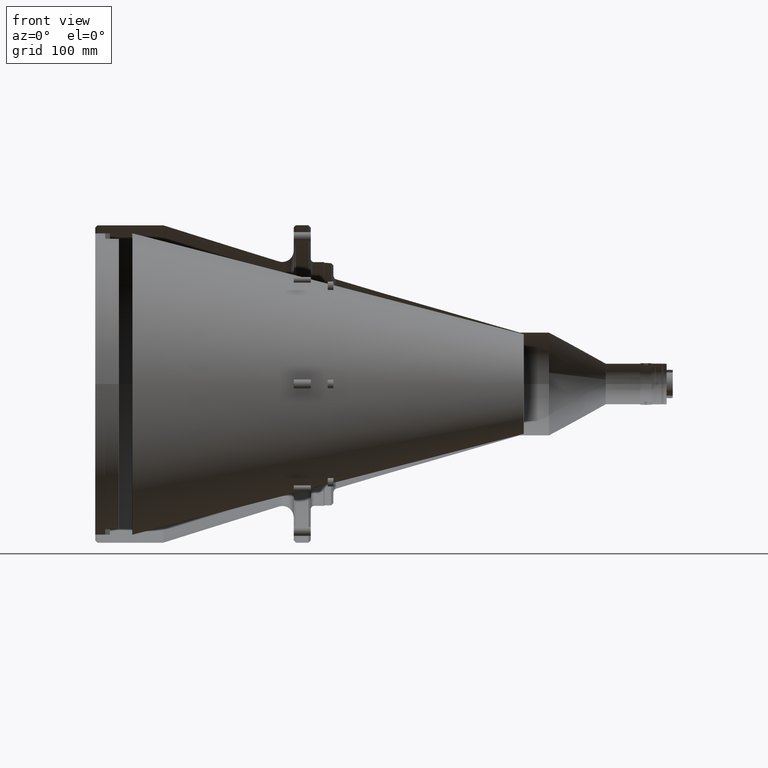
[diagram: clean part render]
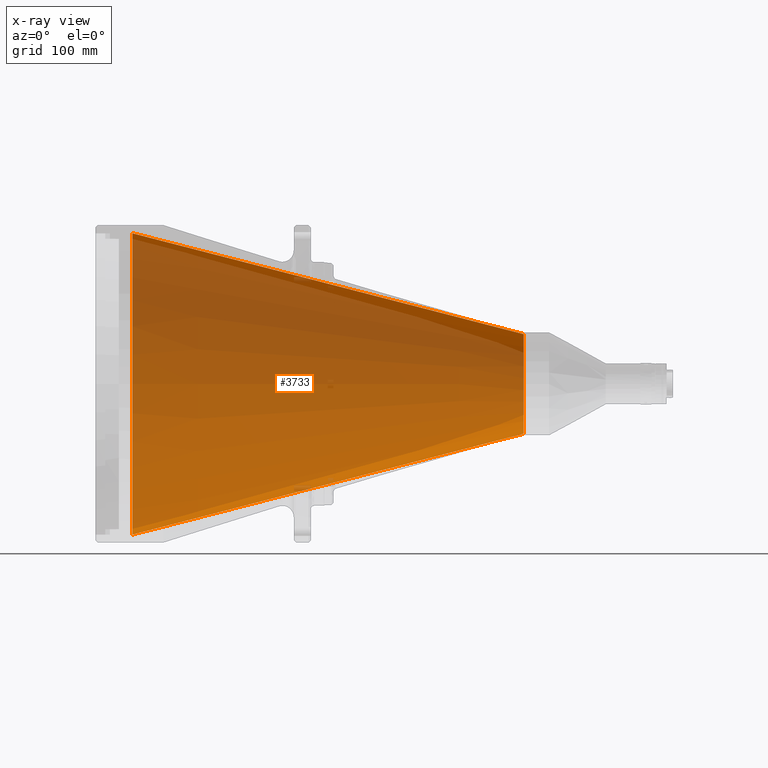
[diagram: x-ray — body ghosted, one internal face saturated and labeled with its STEP entity id]
A machine part, front view, then the same camera in x-ray: the body is ghosted and one INTERNAL B-rep face — a face not visible from any outside direction — is saturated and labeled: STEP entity #3733.
In plain terms, the highlighted conical surface has half-angle 14.455 deg.
Its self-contained STEP definition (entity closure, byte-faithful):
#1843 = FACE_OUTER_BOUND ( 'NONE', #12357, .T. ) ;
#2001 = EDGE_CURVE ( 'NONE', #49968, #39533, #4993, .T. ) ;
#2325 = DIRECTION ( 'NONE',  ( -0.9683443788479452197, -5.185861427084958103E-13, 0.2496180361143545412 ) ) ;
#3733 = ADVANCED_FACE ( 'NONE', ( #1843 ), #13232, .T. ) ;
#4488 = CARTESIAN_POINT ( 'NONE',  ( 32.64865611299999415, 6.232541669094235432E-10, -132.8999999995016310 ) ) ;
#4993 = CIRCLE ( 'NONE', #7463, 43.90496467575479755 ) ;
#5856 = CARTESIAN_POINT ( 'NONE',  ( 377.8874999999999886, 0.000000000000000000, 0.000000000000000000 ) ) ;
#6364 = DIRECTION ( 'NONE',  ( -1.000000000000000000, 0.000000000000000000, 0.000000000000000000 ) ) ;
#7067 = CARTESIAN_POINT ( 'NONE',  ( 377.8874999999999886, 5.308042916309188747E-10, -43.90496467575480466 ) ) ;
#7214 = EDGE_CURVE ( 'NONE', #9697, #37722, #31887, .T. ) ;
#7463 = AXIS2_PLACEMENT_3D ( 'NONE', #5856, #6364, #38021 ) ;
#9697 = VERTEX_POINT ( 'NONE', #41721 ) ;
#10059 = DIRECTION ( 'NONE',  ( 1.000000000000000000, 0.000000000000000000, 0.000000000000000000 ) ) ;
#10883 = LINE ( 'NONE', #18904, #37510 ) ;
#11141 = VECTOR ( 'NONE', #39270, 1000.000000000000000 ) ;
#12032 = EDGE_CURVE ( 'NONE', #39533, #9697, #12508, .T. ) ;
#12357 = EDGE_LOOP ( 'NONE', ( #29917, #18012, #43141, #50928 ) ) ;
#12508 = LINE ( 'NONE', #4488, #11141 ) ;
#13232 = CONICAL_SURFACE ( 'NONE', #38106, 132.8999999998509907, 0.2522857846158361173 ) ;
#14266 = CARTESIAN_POINT ( 'NONE',  ( 32.64865611299999415, 3.471356535555969975E-10, 3.493652861897810146E-10 ) ) ;
#14439 = AXIS2_PLACEMENT_3D ( 'NONE', #29777, #10059, #29267 ) ;
#18012 = ORIENTED_EDGE ( 'NONE', *, *, #12032, .T. ) ;
#18904 = CARTESIAN_POINT ( 'NONE',  ( 32.64865611299999415, 7.103341575773099321E-11, 132.9000000002003503 ) ) ;
#18924 = CARTESIAN_POINT ( 'NONE',  ( 377.8874999999999886, 0.000000000000000000, 43.90496467575479755 ) ) ;
#24342 = EDGE_CURVE ( 'NONE', #49968, #37722, #10883, .T. ) ;
#24979 = CARTESIAN_POINT ( 'NONE',  ( 32.64865611299999415, 7.103341575773099321E-11, 132.9000000002003503 ) ) ;
#29267 = DIRECTION ( 'NONE',  ( 0.000000000000000000, -2.077518719324119976E-12, 1.000000000000000000 ) ) ;
#29777 = CARTESIAN_POINT ( 'NONE',  ( 32.64865611299999415, 3.471356535555969975E-10, 3.493652861897810146E-10 ) ) ;
#29917 = ORIENTED_EDGE ( 'NONE', *, *, #2001, .T. ) ;
#31887 = CIRCLE ( 'NONE', #14439, 132.8999999998509907 ) ;
#37510 = VECTOR ( 'NONE', #2325, 1000.000000000000000 ) ;
#37668 = DIRECTION ( 'NONE',  ( -1.000000000000000000, 0.000000000000000000, 0.000000000000000000 ) ) ;
#37722 = VERTEX_POINT ( 'NONE', #24979 ) ;
#38021 = DIRECTION ( 'NONE',  ( 0.000000000000000000, 0.000000000000000000, 1.000000000000000000 ) ) ;
#38106 = AXIS2_PLACEMENT_3D ( 'NONE', #14266, #37668, #41305 ) ;
#39270 = DIRECTION ( 'NONE',  ( -0.9683443788479452197, 5.186167121013894035E-13, -0.2496180361143545412 ) ) ;
#39533 = VERTEX_POINT ( 'NONE', #7067 ) ;
#41305 = DIRECTION ( 'NONE',  ( 0.000000000000000000, -2.077518719324119976E-12, 1.000000000000000000 ) ) ;
#41721 = CARTESIAN_POINT ( 'NONE',  ( 32.64865611299999415, 6.232541669094235432E-10, -132.8999999995016310 ) ) ;
#43141 = ORIENTED_EDGE ( 'NONE', *, *, #7214, .T. ) ;
#49968 = VERTEX_POINT ( 'NONE', #18924 ) ;
#50928 = ORIENTED_EDGE ( 'NONE', *, *, #24342, .F. ) ;